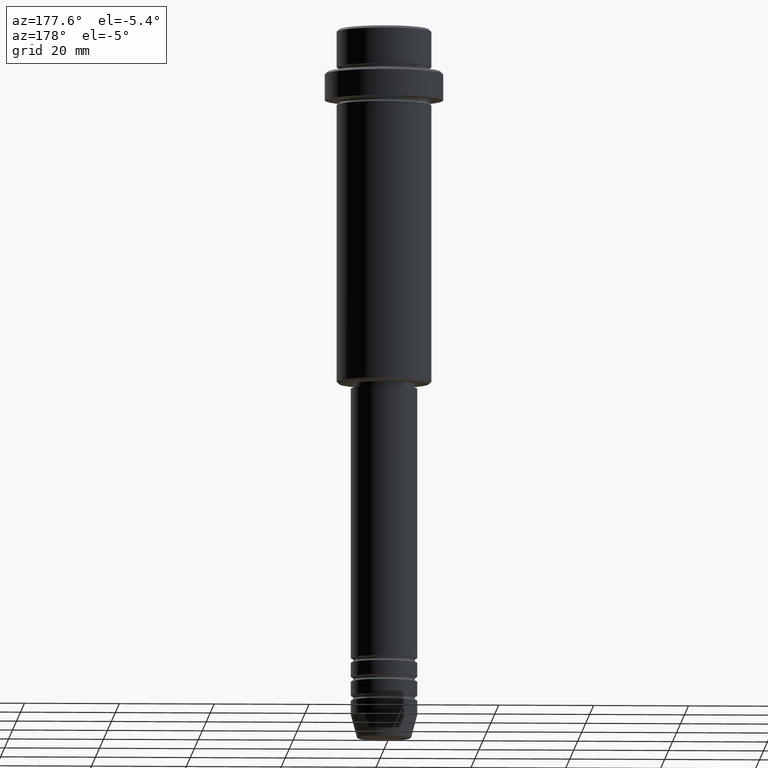
[diagram: clean part render]
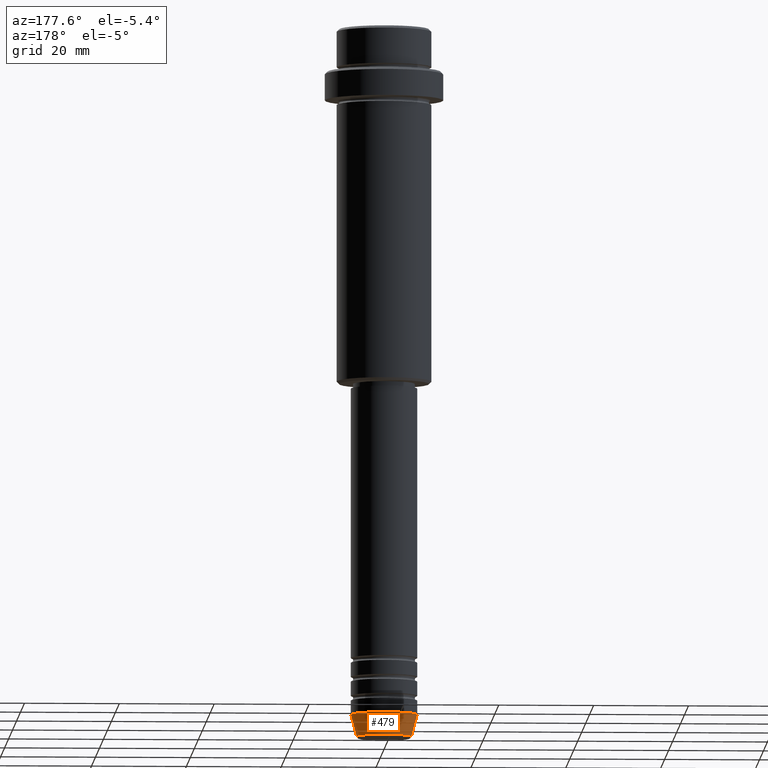
[diagram: same view with one face highlighted and labeled with its STEP entity id]
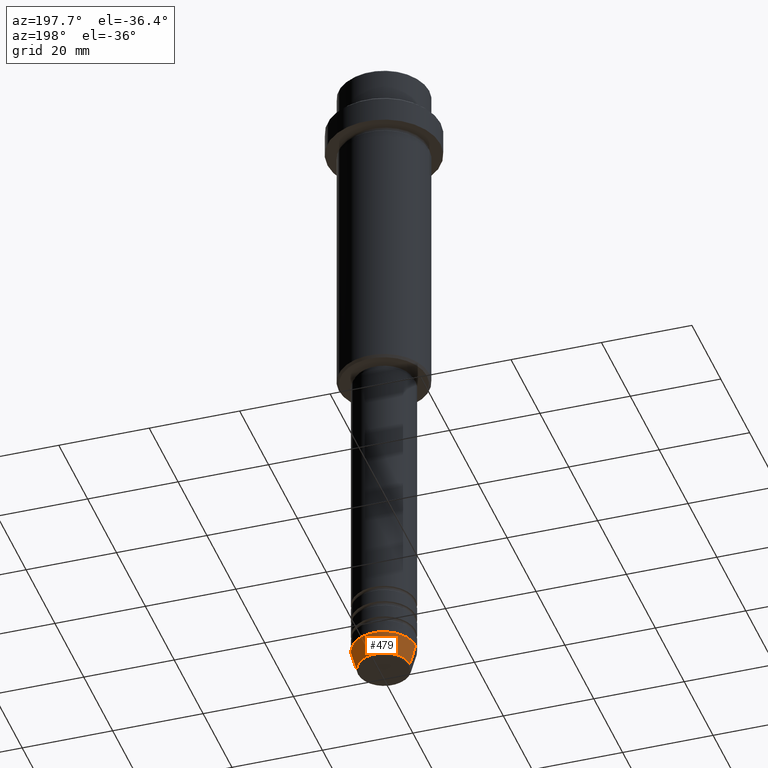
[diagram: same view with one face highlighted and labeled with its STEP entity id]
A machine part, auxiliary view. The second image highlights one B-rep face of the part: STEP entity #479.
A second angle (auxiliary view) of the same face is appended — the face is thin or edge-on in the first view.
In plain terms, the highlighted conical surface has half-angle 15 deg.
Its self-contained STEP definition (entity closure, byte-faithful):
#38 = EDGE_LOOP ( 'NONE', ( #487, #679, #575, #659 ) ) ;
#40 = AXIS2_PLACEMENT_3D ( 'NONE', #591, #685, #1132 ) ;
#96 = VERTEX_POINT ( 'NONE', #1288 ) ;
#125 = VERTEX_POINT ( 'NONE', #999 ) ;
#137 = CARTESIAN_POINT ( 'NONE',  ( -5.759553456999437770, 7.812973149831953745E-16, -149.6294095225512137 ) ) ;
#147 = DIRECTION ( 'NONE',  ( 0.2588190451025227379, 0.000000000000000000, 0.9659258262890676461 ) ) ;
#199 = CARTESIAN_POINT ( 'NONE',  ( 0.000000000000000000, 0.000000000000000000, -145.0000000000000000 ) ) ;
#214 = VECTOR ( 'NONE', #147, 1000.000000000000114 ) ;
#276 = AXIS2_PLACEMENT_3D ( 'NONE', #716, #1060, #1275 ) ;
#333 = AXIS2_PLACEMENT_3D ( 'NONE', #199, #857, #1287 ) ;
#479 = ADVANCED_FACE ( 'NONE', ( #955 ), #1346, .T. ) ;
#487 = ORIENTED_EDGE ( 'NONE', *, *, #940, .T. ) ;
#520 = CARTESIAN_POINT ( 'NONE',  ( -7.000000000000000000, 8.572527594031473190E-16, -145.0000000000000000 ) ) ;
#575 = ORIENTED_EDGE ( 'NONE', *, *, #1300, .F. ) ;
#587 = CARTESIAN_POINT ( 'NONE',  ( -7.000000000000000000, 8.572527594031473190E-16, -145.0000000000000000 ) ) ;
#591 = CARTESIAN_POINT ( 'NONE',  ( 0.000000000000000000, 0.000000000000000000, -145.0000000000000000 ) ) ;
#659 = ORIENTED_EDGE ( 'NONE', *, *, #1314, .F. ) ;
#679 = ORIENTED_EDGE ( 'NONE', *, *, #1324, .T. ) ;
#685 = DIRECTION ( 'NONE',  ( -0.000000000000000000, -0.000000000000000000, 1.000000000000000000 ) ) ;
#692 = LINE ( 'NONE', #1141, #214 ) ;
#716 = CARTESIAN_POINT ( 'NONE',  ( 0.000000000000000000, 0.000000000000000000, -149.6294095225512137 ) ) ;
#773 = VERTEX_POINT ( 'NONE', #137 ) ;
#791 = CIRCLE ( 'NONE', #276, 5.759553456999437770 ) ;
#857 = DIRECTION ( 'NONE',  ( -0.000000000000000000, -0.000000000000000000, 1.000000000000000000 ) ) ;
#940 = EDGE_CURVE ( 'NONE', #125, #773, #791, .T. ) ;
#955 = FACE_OUTER_BOUND ( 'NONE', #38, .T. ) ;
#999 = CARTESIAN_POINT ( 'NONE',  ( 5.759553456999437770, 0.000000000000000000, -149.6294095225512137 ) ) ;
#1029 = VECTOR ( 'NONE', #1088, 1000.000000000000114 ) ;
#1041 = LINE ( 'NONE', #520, #1029 ) ;
#1060 = DIRECTION ( 'NONE',  ( -0.000000000000000000, -0.000000000000000000, 1.000000000000000000 ) ) ;
#1088 = DIRECTION ( 'NONE',  ( -0.2588190451025227379, 3.169619151431788361E-17, 0.9659258262890676461 ) ) ;
#1132 = DIRECTION ( 'NONE',  ( 1.000000000000000000, 0.000000000000000000, 0.000000000000000000 ) ) ;
#1141 = CARTESIAN_POINT ( 'NONE',  ( 7.000000000000000000, 0.000000000000000000, -145.0000000000000000 ) ) ;
#1175 = VERTEX_POINT ( 'NONE', #587 ) ;
#1270 = CIRCLE ( 'NONE', #40, 7.000000000000000000 ) ;
#1275 = DIRECTION ( 'NONE',  ( 1.000000000000000000, 0.000000000000000000, 0.000000000000000000 ) ) ;
#1287 = DIRECTION ( 'NONE',  ( 1.000000000000000000, 0.000000000000000000, 0.000000000000000000 ) ) ;
#1288 = CARTESIAN_POINT ( 'NONE',  ( 7.000000000000000000, 0.000000000000000000, -145.0000000000000000 ) ) ;
#1300 = EDGE_CURVE ( 'NONE', #96, #1175, #1270, .T. ) ;
#1314 = EDGE_CURVE ( 'NONE', #125, #96, #692, .T. ) ;
#1324 = EDGE_CURVE ( 'NONE', #773, #1175, #1041, .T. ) ;
#1346 = CONICAL_SURFACE ( 'NONE', #333, 7.000000000000000000, 0.2617993877991514617 ) ;